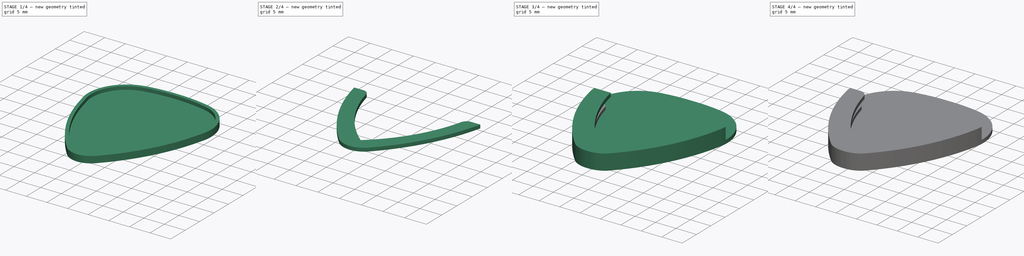
[diagram: build sequence overview — one tinted view per stage of 4, left to right]
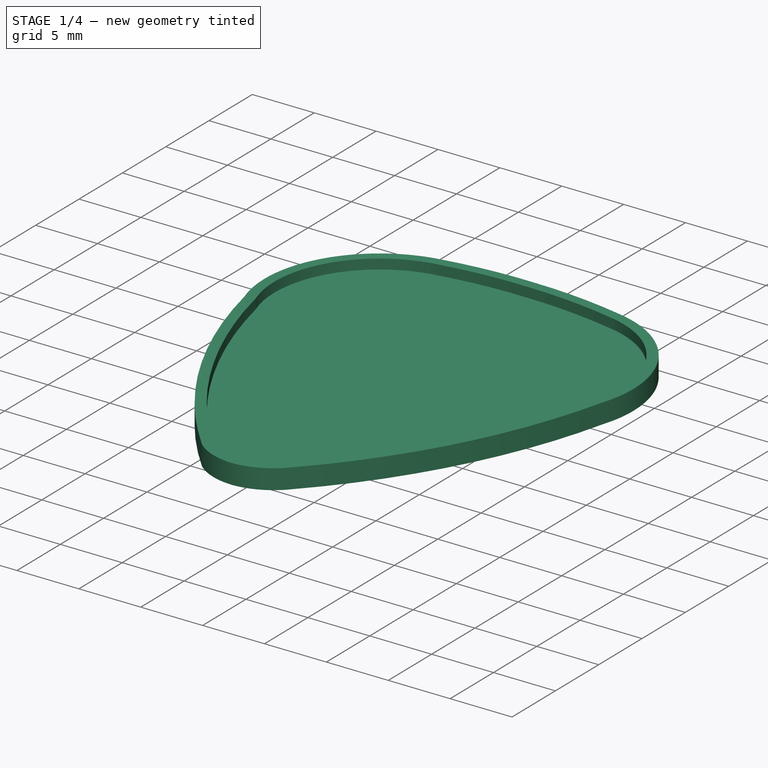
[diagram: stage 1 of 4 — iso view after this stage's code; geometry added in this stage tinted green]
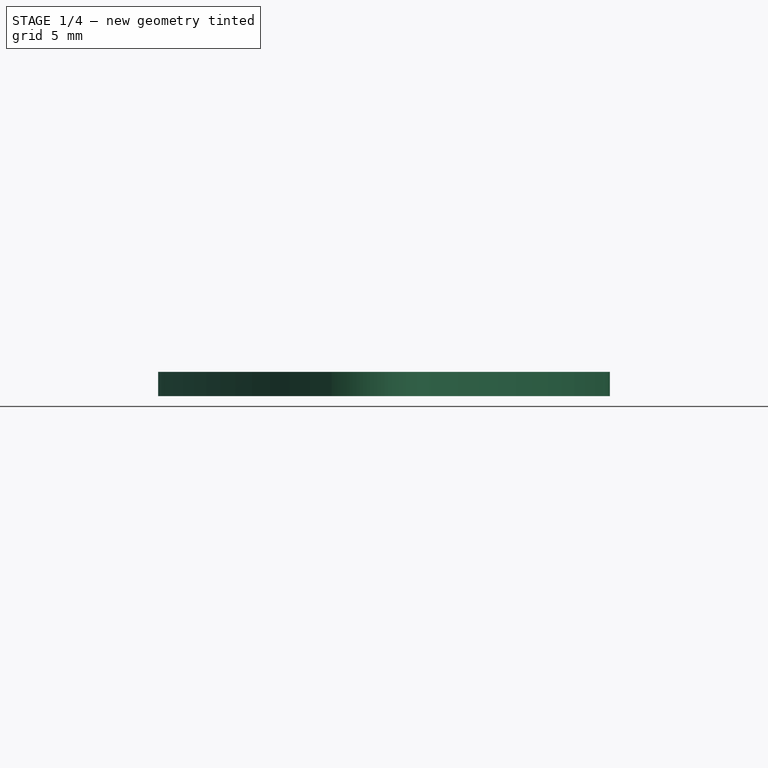
[diagram: stage 1 of 4 — front view after this stage's code; geometry added in this stage tinted green]
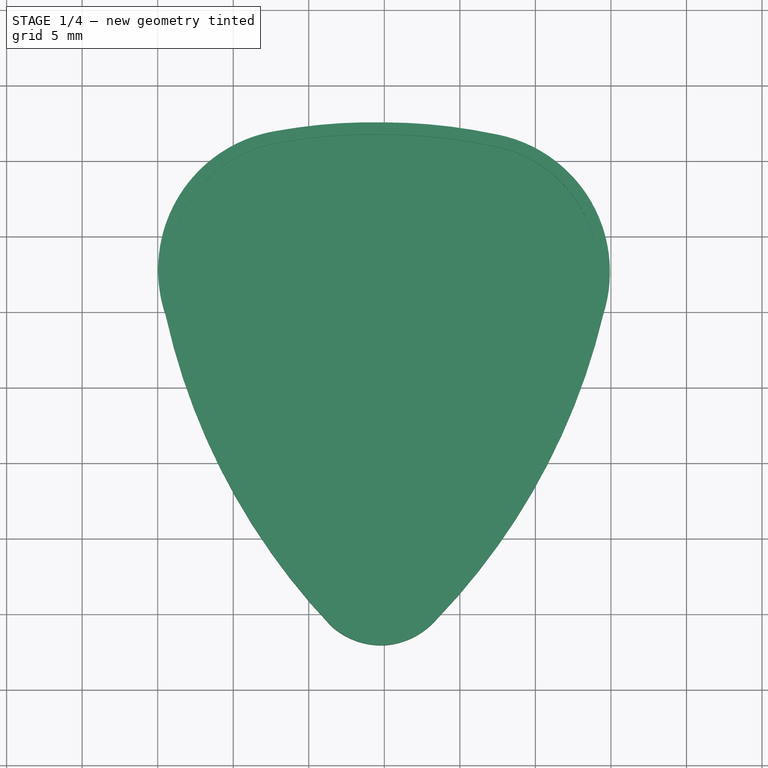
[diagram: stage 1 of 4 — top view after this stage's code; geometry added in this stage tinted green]
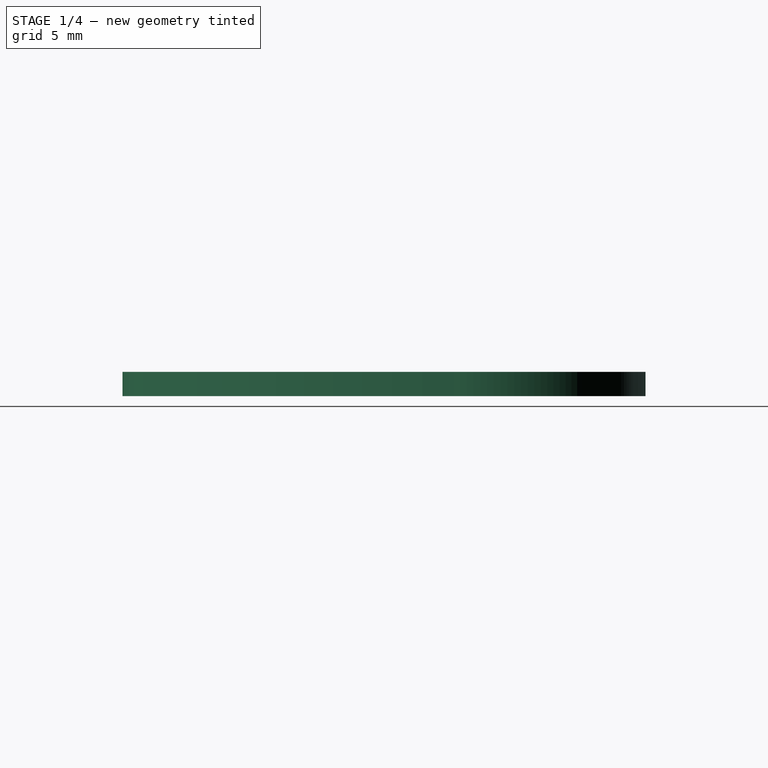
[diagram: stage 1 of 4 — right view after this stage's code; geometry added in this stage tinted green]
FCSTD DOCUMENT  (FreeCAD 0.18R16131 (Git))
Label: Guitar Plectrum Holder
License: CreativeCommons Attribution-NonCommercial-NoDerivatives
LicenseURL: http://creativecommons.org/licenses/by-nc-nd/4.0/
objects: Sketcher::SketchObject×7, PartDesign::Pad×5, PartDesign::Body×3, Spreadsheet::Sheet×2, PartDesign::Fillet×2, App::DocumentObjectGroup×2, Image::ImagePlane×1, PartDesign::Chamfer×1, PartDesign::Thickness×1, PartDesign::Pocket×1, PartDesign::ShapeBinder×1
note: 27 computed .brp shape members not serialized (recipe doc carries the construction recipe); baked Part::Feature solids carry a one-line shape summary decoded from their .brp

FEATURE [PartDesign::Body] Body
  Group = -> [Sketch,Pad,Sketch001,Pad001,Sketch002,Pad002,Chamfer,Fillet]
  Origin = -> Origin
  Tip = -> Fillet
FEATURE [Spreadsheet::Sheet] Spreadsheet001  label="TopSpreadsheet"
  cells = A1=ShellOffset; B1(ShellOffset)=2; A2=ShellThickness; B2(ShellThickness)=1.6; A3=ShellHeight; B3(ShellHeight)=2; A4=OverhangWidth; B4(OverhangWidth)=4; A5=OverhangChamfer; B5(OverhangChamfer)=1.5
FEATURE [Sketcher::SketchObject] Sketch003
  MapMode = 5
  Support = -> [XY_Plane001]
  expr: Constraints[27] = TopSpreadsheet.ShellOffset
  expr: Constraints[9] = TopSpreadsheet.ShellOffset
  expr: Constraints[38] = TopSpreadsheet.ShellOffset
  expr: Constraints[26] = TopSpreadsheet.ShellOffset
  expr: Constraints[44] = TopSpreadsheet.ShellOffset
  expr: Constraints[16] = TopSpreadsheet.ShellOffset
  expr: Constraints[11] = TopSpreadsheet.ShellOffset
  expr: Constraints[39] = TopSpreadsheet.ShellOffset
  sketch-geometry (24):
    g0: ArcOfCircle [constr] CenterX=-5.50026 CenterY=7.59706 CenterZ=0 NormalX=0 NormalY=0 NormalZ=1 AngleXU=0 Radius=7.55281 StartAngle=1.70906 EndAngle=3.35591
    g1: ArcOfCircle [constr] CenterX=26.1213 CenterY=13.5975 CenterZ=0 NormalX=0 NormalY=0 NormalZ=1 AngleXU=0 Radius=39.7365 StartAngle=3.33421 EndAngle=3.92692
    g2: ArcOfCircle [constr] CenterX=-0.255865 CenterY=-12.1995 CenterZ=0 NormalX=0 NormalY=0 NormalZ=1 AngleXU=0 Radius=2.87283 StartAngle=4.06936 EndAngle=4.80157
    g3: ArcOfCircle [constr] CenterX=-0.819797 CenterY=-18.5992 CenterZ=0 NormalX=0 NormalY=0 NormalZ=1 AngleXU=0 Radius=34.1595 StartAngle=1.54679 EndAngle=1.73908
    g4: ArcOfCircle [constr] CenterX=0.11781 CenterY=-18.5659 CenterZ=0 NormalX=0 NormalY=0 NormalZ=1 AngleXU=0 Radius=34.1166 StartAngle=1.38371 EndAngle=1.57425
    g5: ArcOfCircle [constr] CenterX=5.50894 CenterY=7.47827 CenterZ=0 NormalX=0 NormalY=0 NormalZ=1 AngleXU=0 Radius=7.53778 StartAngle=6.09701 EndAngle=7.727
    g6: ArcOfCircle [constr] CenterX=-26.1042 CenterY=13.5899 CenterZ=0 NormalX=0 NormalY=0 NormalZ=1 AngleXU=0 Radius=39.7361 StartAngle=5.50152 EndAngle=6.09313
    g7: ArcOfCircle [constr] CenterX=0.257735 CenterY=-12.2001 CenterZ=0 NormalX=0 NormalY=0 NormalZ=1 AngleXU=0 Radius=2.87036 StartAngle=4.62249 EndAngle=5.40851
    g8: LineSegment [constr] StartX=2.6e-15 StartY=15.5505 StartZ=0 EndX=2.6e-15 EndY=17.5505 EndZ=0
    g9: LineSegment [constr] StartX=-6.54119 StartY=15.0778 StartZ=0 EndX=-7.13932 EndY=16.9863 EndZ=0
    g10: LineSegment [constr] StartX=-12.8803 StartY=5.99074 StartZ=0 EndX=-14.4647 EndY=4.77018 EndZ=0
    g11: LineSegment [constr] StartX=-1.97848 StartY=-14.4986 StartZ=0 EndX=-3.48032 EndY=-15.8194 EndZ=0
    g12: LineSegment [constr] StartX=3e-16 StartY=-15.0609 StartZ=0 EndX=2.374e-12 EndY=-17.0609 EndZ=0
    g13: ArcOfCircle CenterX=-0.776429 CenterY=-18.0741 CenterZ=0 NormalX=0 NormalY=0 NormalZ=1 AngleXU=0 Radius=35.6331 StartAngle=1.54901 EndAngle=1.75033
    g14: ArcOfCircle CenterX=-5.67028 CenterY=7.80101 CenterZ=0 NormalX=0 NormalY=0 NormalZ=1 AngleXU=0 Radius=9.30199 StartAngle=1.72939 EndAngle=3.47348
    g15: ArcOfCircle CenterX=28.1406 CenterY=14.2749 CenterZ=0 NormalX=0 NormalY=0 NormalZ=1 AngleXU=0 Radius=43.6526 StartAngle=3.36109 EndAngle=3.90226
    g16: ArcOfCircle CenterX=-0.181533 CenterY=-12.071 CenterZ=0 NormalX=0 NormalY=0 NormalZ=1 AngleXU=0 Radius=4.99323 StartAngle=3.9907 EndAngle=4.74875
    g17: ArcOfCircle CenterX=-0.0750117 CenterY=-18.0812 CenterZ=0 NormalX=0 NormalY=0 NormalZ=1 AngleXU=0 Radius=35.6318 StartAngle=1.36314 EndAngle=1.56869
    g18: ArcOfCircle CenterX=5.67604 CenterY=7.67005 CenterZ=0 NormalX=0 NormalY=0 NormalZ=1 AngleXU=0 Radius=9.25357 StartAngle=5.97309 EndAngle=7.68076
    g19: LineSegment [constr] StartX=6.4635 StartY=14.9554 StartZ=0 EndX=7.27094 EndY=16.7851 EndZ=0
    g20: LineSegment [constr] StartX=12.9165 StartY=6.08304 StartZ=0 EndX=14.4883 EndY=4.84633 EndZ=0
    g21: ArcOfCircle CenterX=-28.142 CenterY=15.031 CenterZ=0 NormalX=0 NormalY=0 NormalZ=1 AngleXU=0 Radius=43.83 StartAngle=5.51808 EndAngle=6.04867
    g22: ArcOfCircle CenterX=-0.339672 CenterY=-12.0369 CenterZ=0 NormalX=0 NormalY=0 NormalZ=1 AngleXU=0 Radius=5.03549 StartAngle=4.7799 EndAngle=5.57138
    g23: LineSegment [constr] StartX=1.99046 StartY=-13.9838 StartZ=0 EndX=3.47312 EndY=-15.3261 EndZ=0
  constraints (49):
    c: Coincident(g1,g0)
    c: Coincident(g2,g1)
    c: PointOnObject(g2,g-2)
    c: Coincident(g3,g0)
    c: Coincident(g6,g5)
    c: Coincident(g7,g6)
    c: Coincident(g4,g5)
    c: Coincident(g8,g3)
    c: Vertical(g8)
    c: Distance(g8) = 2
    c: Coincident(g9,g0)
    c: Distance(g9) = 2
    c: Coincident(g10,g0)
    c: Coincident(g11,g1)
    c: Coincident(g12,g2)
    c: PointOnObject(g12,g-2)
    c: Distance(g10) = 2
    c: Block(g2)
    c: Block(g1)
    c: Block(g0)
    c: Coincident(g4,g3)
    c: Block(g6)
    c: Block(g5)
    c: Block(g4)
    c: Block(g3)
    c: Block(g7)
    c: Distance(g11) = 2
    c: Distance(g12) = 2
    c: Coincident(g13,g8)
    c: Coincident(g13,g9)
    c: Coincident(g14,g13)
    c: Coincident(g14,g10)
    c: Coincident(g15,g14)
    c: Coincident(g15,g11)
    c: Coincident(g16,g15)
    c: Coincident(g16,g12)
    c: Coincident(g18,g17)
    c: Coincident(g13,g17)
    c: Distance(g19) = 2
    c: Distance(g20) = 2
    c: Coincident(g20,g5)
    c: Coincident(g20,g18)
    c: Coincident(g22,g21)
    c: Coincident(g18,g21)
    c: Distance(g23) = 2
    c: Coincident(g16,g22)
    c: Coincident(g23,g21)
    c: Coincident(g4,g19)
    c: Coincident(g19,g17)
FEATURE [PartDesign::Pad] Pad005
  Length = 1.6
  Length2 = 100
  Profile = -> Sketch003
  Type = 0
  expr: Length = Spreadsheet001.ShellThickness
FEATURE [Sketcher::SketchObject] Sketch004
  ExternalGeometry = -> [Pad005]
  MapMode = 5
  Placement = pos=(0,0,1.6) rot=(0,0,1;0rad)
  Support = -> [Pad005]
  sketch-geometry (8):
    g0: ArcOfCircle CenterX=-0.776429 CenterY=-18.0741 CenterZ=0 NormalX=0 NormalY=0 NormalZ=1 AngleXU=0 Radius=35.6331 StartAngle=1.54901 EndAngle=1.75033
    g1: ArcOfCircle CenterX=-5.67028 CenterY=7.80101 CenterZ=0 NormalX=0 NormalY=0 NormalZ=1 AngleXU=0 Radius=9.30199 StartAngle=1.72939 EndAngle=3.47348
    g2: ArcOfCircle CenterX=28.1406 CenterY=14.2749 CenterZ=0 NormalX=0 NormalY=0 NormalZ=1 AngleXU=0 Radius=43.6526 StartAngle=3.36109 EndAngle=3.90226
    g3: ArcOfCircle CenterX=-0.181533 CenterY=-12.071 CenterZ=0 NormalX=0 NormalY=0 NormalZ=1 AngleXU=0 Radius=4.99323 StartAngle=3.9907 EndAngle=4.74875
    g4: ArcOfCircle CenterX=-0.339672 CenterY=-12.0369 CenterZ=0 NormalX=0 NormalY=0 NormalZ=1 AngleXU=0 Radius=5.03549 StartAngle=4.7799 EndAngle=5.57138
    g5: ArcOfCircle CenterX=-28.142 CenterY=15.031 CenterZ=0 NormalX=0 NormalY=0 NormalZ=1 AngleXU=0 Radius=43.83 StartAngle=5.51808 EndAngle=6.04867
    g6: ArcOfCircle CenterX=5.67604 CenterY=7.67005 CenterZ=0 NormalX=0 NormalY=0 NormalZ=1 AngleXU=0 Radius=9.25357 StartAngle=5.97309 EndAngle=7.68076
    g7: ArcOfCircle CenterX=-0.0750117 CenterY=-18.0812 CenterZ=0 NormalX=0 NormalY=0 NormalZ=1 AngleXU=0 Radius=35.6318 StartAngle=1.36314 EndAngle=1.56869
  constraints (24):
    c: Coincident(g0,g-10)
    c: Coincident(g0,g-10)
    c: Coincident(g1,g0)
    c: Coincident(g1,g-9)
    c: Coincident(g2,g1)
    c: Coincident(g2,g-8)
    c: Coincident(g3,g2)
    c: Coincident(g3,g-7)
    c: Coincident(g4,g3)
    c: Coincident(g4,g-6)
    c: Coincident(g5,g4)
    c: Coincident(g5,g-5)
    c: Coincident(g6,g5)
    c: Coincident(g6,g-4)
    c: Coincident(g7,g0)
    c: Coincident(g7,g6)
    c: Equal(g-10,g0)
    c: Equal(g-9,g1)
    c: Equal(g-8,g2)
    c: Equal(g-7,g3)
    c: Equal(g-6,g4)
    c: Equal(g-5,g5)
    c: Equal(g-4,g6)
    c: Equal(g-3,g7)
FEATURE [PartDesign::Thickness] Thickness
  Base = -> Pad005 [Face10]
  BaseFeature = -> Pad005
  Join = 1
  Mode = 0
  Reversed = true
  Value = 0.8
  expr: Value = Spreadsheet001.ShellThickness / 2
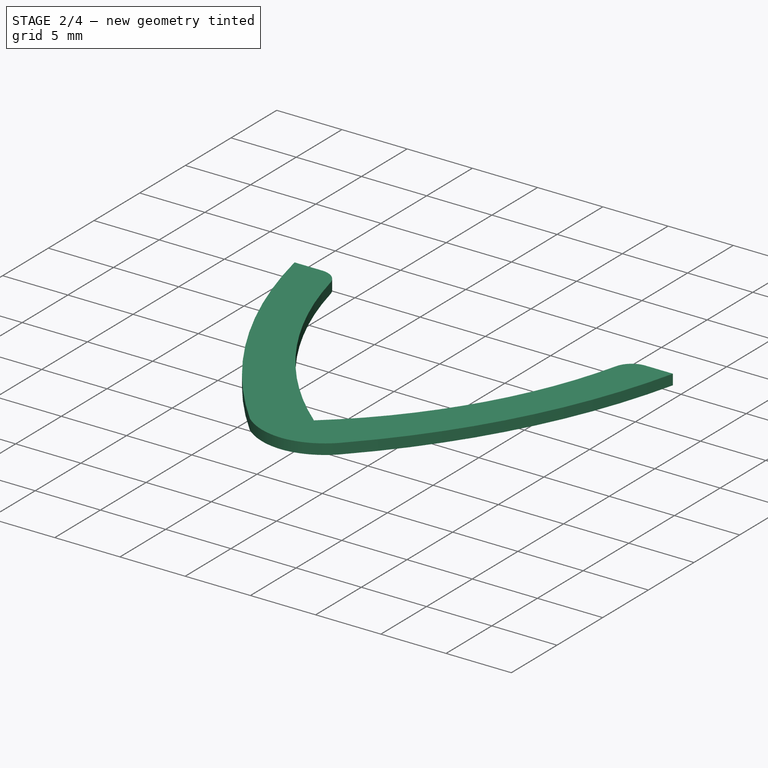
[diagram: stage 2 of 4 — iso view after this stage's code; geometry added in this stage tinted green]
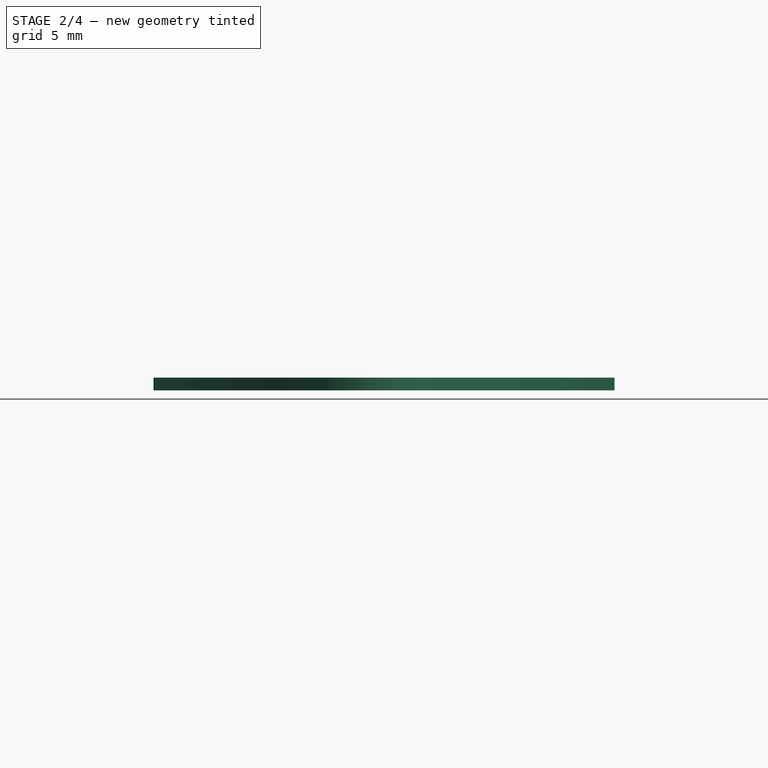
[diagram: stage 2 of 4 — front view after this stage's code; geometry added in this stage tinted green]
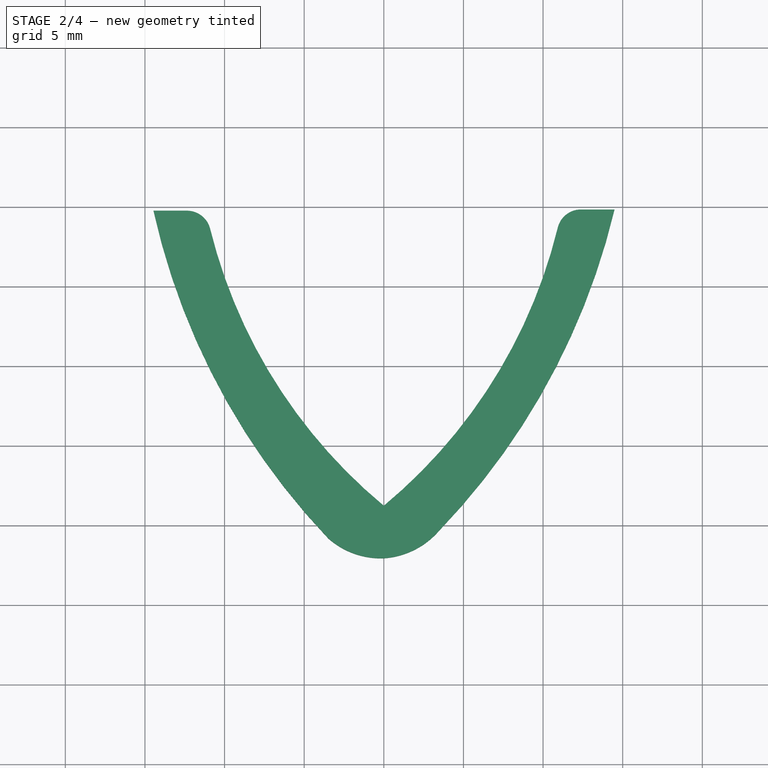
[diagram: stage 2 of 4 — top view after this stage's code; geometry added in this stage tinted green]
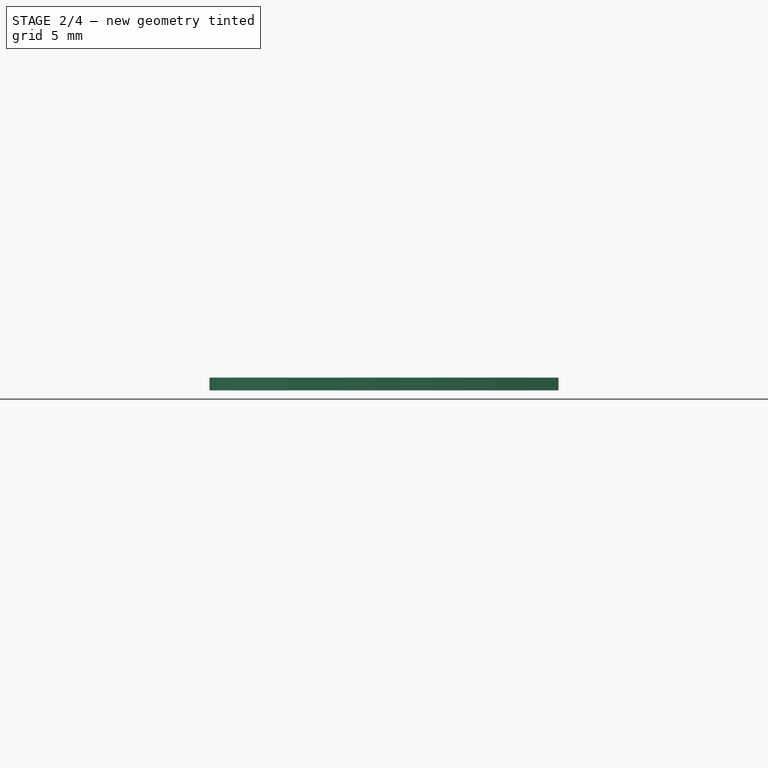
[diagram: stage 2 of 4 — right view after this stage's code; geometry added in this stage tinted green]
FEATURE [Sketcher::SketchObject] Sketch005
  ExternalGeometry = -> [Thickness]
  MapMode = 5
  Placement = pos=(0,0,1.6) rot=(0,0,1;0rad)
  Support = -> [Thickness]
  sketch-geometry (10):
    g0: LineSegment StartX=-14.4647 StartY=4.77018 StartZ=0 EndX=-13.6938 EndY=4.98909 EndZ=0
    g1: LineSegment StartX=13.7173 StartY=5.06217 StartZ=0 EndX=14.4883 EndY=4.84633 EndZ=0
    g2: ArcOfCircle CenterX=-5.67028 CenterY=7.80101 CenterZ=0 NormalX=0 NormalY=0 NormalZ=1 AngleXU=0 Radius=8.50199 StartAngle=1.72842 EndAngle=3.47868
    g3: ArcOfCircle CenterX=5.67604 CenterY=7.67005 CenterZ=0 NormalX=0 NormalY=0 NormalZ=1 AngleXU=0 Radius=8.45357 StartAngle=5.96958 EndAngle=7.68236
    g4: ArcOfCircle CenterX=5.67604 CenterY=7.67005 CenterZ=0 NormalX=0 NormalY=0 NormalZ=1 AngleXU=0 Radius=9.25357 StartAngle=5.97309 EndAngle=7.68076
    g5: ArcOfCircle CenterX=-0.0750117 CenterY=-18.0812 CenterZ=0 NormalX=0 NormalY=0 NormalZ=1 AngleXU=0 Radius=35.6318 StartAngle=1.36314 EndAngle=1.56869
    g6: ArcOfCircle CenterX=-0.776429 CenterY=-18.0741 CenterZ=0 NormalX=0 NormalY=0 NormalZ=1 AngleXU=0 Radius=35.6331 StartAngle=1.54901 EndAngle=1.75033
    g7: ArcOfCircle CenterX=-5.67028 CenterY=7.80101 CenterZ=0 NormalX=0 NormalY=0 NormalZ=1 AngleXU=0 Radius=9.30199 StartAngle=1.72939 EndAngle=3.47348
    g8: ArcOfCircle CenterX=-0.0750117 CenterY=-18.0812 CenterZ=0 NormalX=0 NormalY=0 NormalZ=1 AngleXU=0 Radius=34.8318 StartAngle=1.36274 EndAngle=1.56892
    g9: ArcOfCircle CenterX=-0.776429 CenterY=-18.0741 CenterZ=0 NormalX=0 NormalY=0 NormalZ=1 AngleXU=0 Radius=34.8331 StartAngle=1.54878 EndAngle=1.75057
  constraints (28):
    c: Coincident(g-9,g0)
    c: Coincident(g-10,g0)
    c: Coincident(g-6,g1)
    c: Coincident(g-4,g1)
    c: Coincident(g0,g2)
    c: Coincident(g2,g-10)
    c: Equal(g-10,g2)
    c: Coincident(g3,g1)
    c: Coincident(g4,g1)
    c: Coincident(g4,g-4)
    c: Coincident(g5,g4)
    c: Coincident(g5,g-7)
    c: Coincident(g6,g-9)
    c: Coincident(g6,g5)
    c: Coincident(g7,g6)
    c: Coincident(g7,g0)
    c: Equal(g-9,g7)
    c: Equal(g-7,g6)
    c: Equal(g-3,g5)
    c: Equal(g-4,g4)
    c: Equal(g-6,g3)
    c: Coincident(g8,g-8)
    c: Coincident(g8,g3)
    c: Coincident(g9,g8)
    c: Coincident(g9,g2)
    c: Equal(g-8,g9)
    c: Equal(g-5,g8)
    c: Coincident(g-6,g3)
FEATURE [PartDesign::Pocket] Pocket
  BaseFeature = -> Thickness
  Length = 0.8
  Length2 = 100
  Profile = -> Sketch005
  Type = 0
  expr: Length = TopSpreadsheet.ShellThickness / 2
FEATURE [PartDesign::Body] Body001  label="MainBody"
  Group = -> [Sketch003,Pad005,Sketch004,Thickness,Sketch005,Pocket]
  Origin = -> Origin001
  Tip = -> Pocket
FEATURE [PartDesign::ShapeBinder] ShapeBinder
  Support = -> [Pocket]
  TraceSupport = false
FEATURE [Sketcher::SketchObject] Sketch006
  ExternalGeometry = -> [ShapeBinder]
  MapMode = 5
  Placement = pos=(0,0,1.6) rot=(0,0,1;0rad)
  Support = -> [ShapeBinder]
  sketch-geometry (10):
    g0: ArcOfCircle CenterX=28.1406 CenterY=14.2749 CenterZ=0 NormalX=0 NormalY=0 NormalZ=1 AngleXU=0 Radius=43.6526 StartAngle=3.36109 EndAngle=3.90226
    g1: ArcOfCircle CenterX=-0.181533 CenterY=-12.071 CenterZ=0 NormalX=0 NormalY=0 NormalZ=1 AngleXU=0 Radius=4.99323 StartAngle=3.9907 EndAngle=4.74875
    g2: ArcOfCircle CenterX=-0.339672 CenterY=-12.0369 CenterZ=0 NormalX=0 NormalY=0 NormalZ=1 AngleXU=0 Radius=5.03549 StartAngle=4.7799 EndAngle=5.57138
    g3: ArcOfCircle CenterX=-28.142 CenterY=15.031 CenterZ=0 NormalX=0 NormalY=0 NormalZ=1 AngleXU=0 Radius=43.83 StartAngle=5.51808 EndAngle=6.04867
    g4: LineSegment StartX=-14.4647 StartY=4.77018 StartZ=0 EndX=-11.1647 EndY=4.77018 EndZ=0
    g5: LineSegment StartX=14.4883 StartY=4.84633 StartZ=0 EndX=11.1883 EndY=4.84633 EndZ=0
    g6: GeomPoint X=2.2702e-12 Y=-13.7609 Z=0
    g7: ArcOfCircle CenterX=20.9812 CenterY=11.5087 CenterZ=0 NormalX=0 NormalY=0 NormalZ=1 AngleXU=0 Radius=32.8445 StartAngle=3.34822 EndAngle=4.01945
    g8: ArcOfCircle CenterX=-20.9812 CenterY=11.5087 CenterZ=0 NormalX=0 NormalY=0 NormalZ=1 AngleXU=0 Radius=32.8445 StartAngle=5.40533 EndAngle=6.07655
    g9: LineSegment StartX=11.1647 StartY=4.77018 StartZ=0 EndX=11.1883 EndY=4.84633 EndZ=0
  constraints (18):
    c: Coincident(g0,g-3)
    c: Coincident(g0,g-4)
    c: Coincident(g1,g0)
    c: Coincident(g1,g-5)
    c: Coincident(g2,g1)
    c: Coincident(g2,g-6)
    c: Coincident(g3,g2)
    c: Equal(g-3,g0)
    c: Equal(g-4,g1)
    c: Equal(g-5,g2)
    c: Equal(g-6,g3)
    c: Coincident(g4,g0)
    c: Coincident(g7,g4)
    c: Coincident(g7,g6)
    c: Block(g7)
    c: Block(g8)
    c: Coincident(g9,g8)
    c: Coincident(g9,g5)
FEATURE [PartDesign::Pad] Pad006
  Length = 0.8
  Length2 = 100
  Profile = -> Sketch006
  Type = 0
  expr: Length = TopSpreadsheet.ShellThickness / 2
FEATURE [App::DocumentObjectGroup] Group  label="Main"
  Group = -> [Body001,Spreadsheet]
FEATURE [PartDesign::Fillet] Fillet001
  Base = -> Pad006 [Edge23,Edge14]
  BaseFeature = -> Pad006
  Radius = 1.5
FEATURE [PartDesign::Body] Body002  label="TopBody"
  Group = -> [ShapeBinder,Sketch006,Pad006,Fillet001]
  Origin = -> Origin002
  Tip = -> Fillet001
FEATURE [App::DocumentObjectGroup] Group001  label="Top"
  Group = -> [Body002,Spreadsheet001]
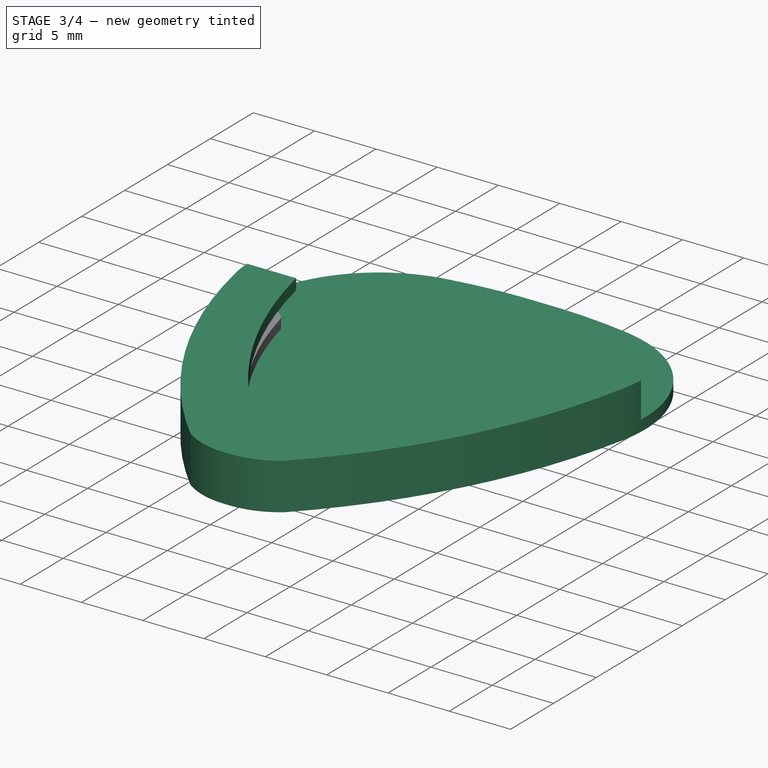
[diagram: stage 3 of 4 — iso view after this stage's code; geometry added in this stage tinted green]
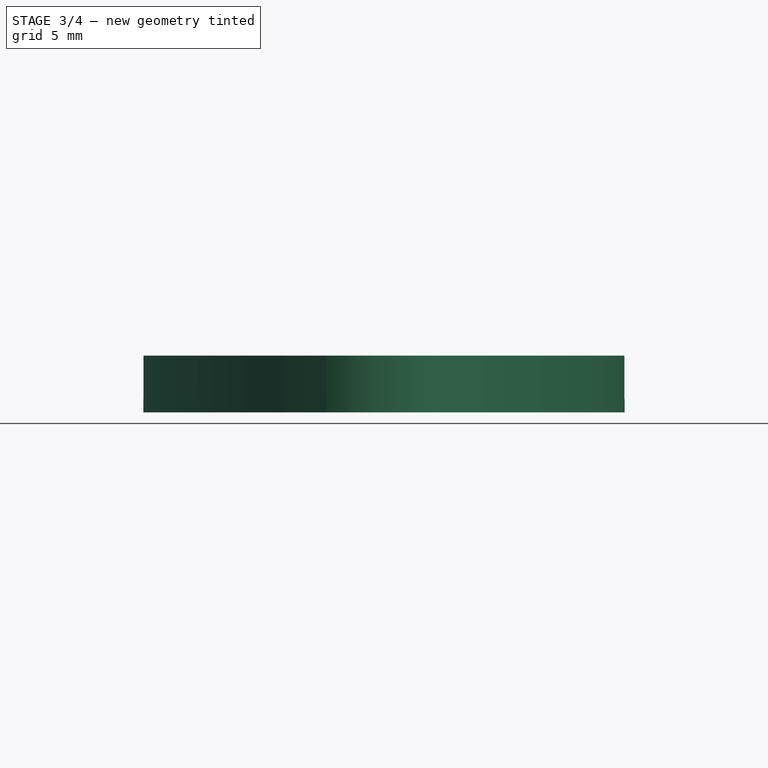
[diagram: stage 3 of 4 — front view after this stage's code; geometry added in this stage tinted green]
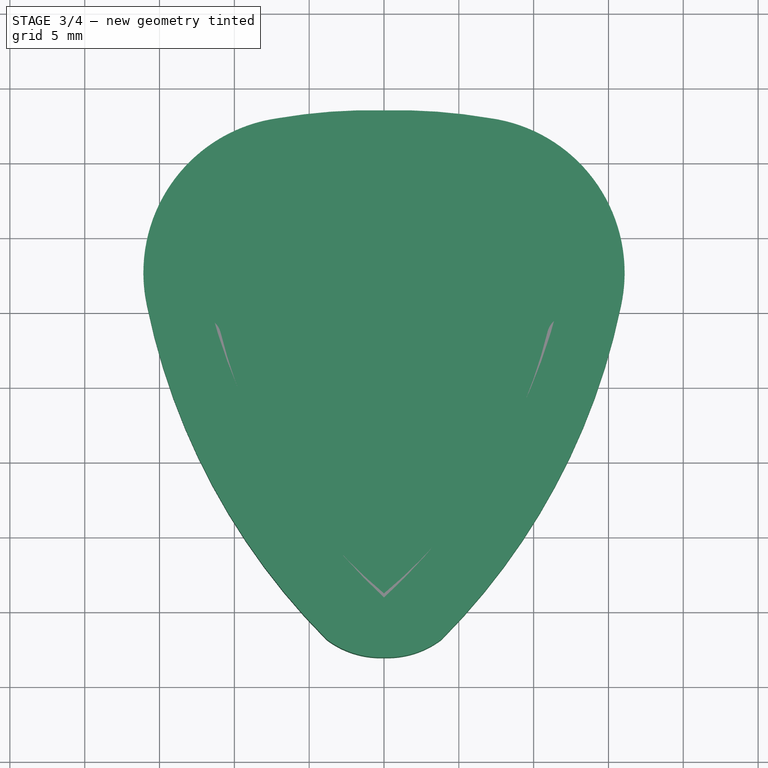
[diagram: stage 3 of 4 — top view after this stage's code; geometry added in this stage tinted green]
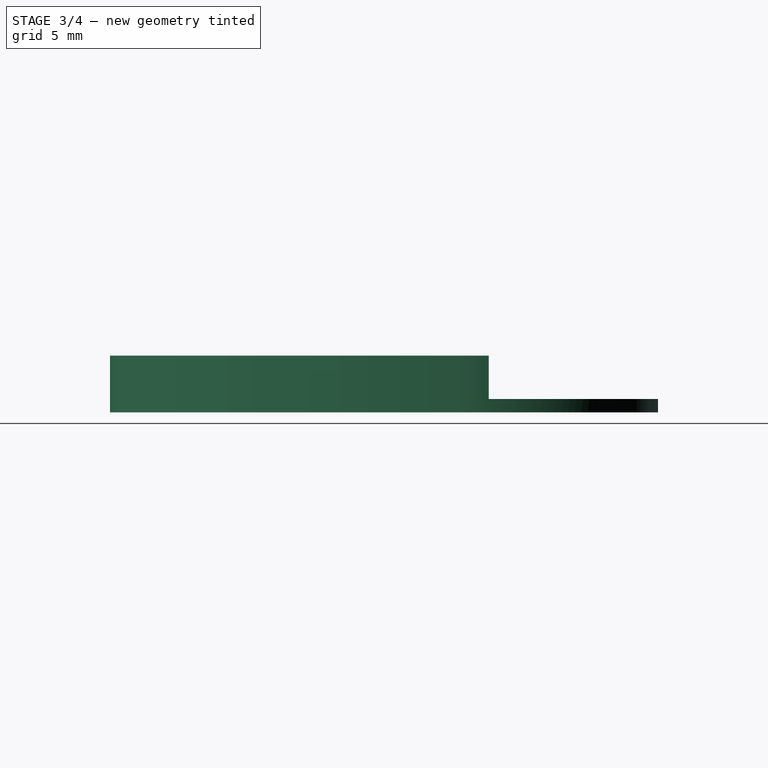
[diagram: stage 3 of 4 — right view after this stage's code; geometry added in this stage tinted green]
FEATURE [Sketcher::SketchObject] Sketch
  MapMode = 5
  Support = -> [XY_Plane]
  expr: Constraints[26] = Spreadsheet.ShellOffset
  expr: Constraints[16] = Spreadsheet.ShellOffset
  expr: Constraints[11] = Spreadsheet.ShellOffset
  expr: Constraints[27] = Spreadsheet.ShellOffset
  expr: Constraints[9] = Spreadsheet.ShellOffset
  sketch-geometry (21):
    g0: ArcOfCircle [constr] CenterX=-5.50026 CenterY=7.59706 CenterZ=0 NormalX=0 NormalY=0 NormalZ=1 AngleXU=0 Radius=7.55281 StartAngle=1.70906 EndAngle=3.35591
    g1: ArcOfCircle [constr] CenterX=26.1213 CenterY=13.5975 CenterZ=0 NormalX=0 NormalY=0 NormalZ=1 AngleXU=0 Radius=39.7365 StartAngle=3.33421 EndAngle=3.92692
    g2: ArcOfCircle [constr] CenterX=-0.255865 CenterY=-12.1995 CenterZ=0 NormalX=0 NormalY=0 NormalZ=1 AngleXU=0 Radius=2.87283 StartAngle=4.06936 EndAngle=4.80157
    g3: ArcOfCircle [constr] CenterX=-0.819797 CenterY=-18.5992 CenterZ=0 NormalX=0 NormalY=0 NormalZ=1 AngleXU=0 Radius=34.1595 StartAngle=1.54679 EndAngle=1.73908
    g4: ArcOfCircle [constr] CenterX=0.11781 CenterY=-18.5659 CenterZ=0 NormalX=0 NormalY=0 NormalZ=1 AngleXU=0 Radius=34.1166 StartAngle=1.38371 EndAngle=1.57425
    g5: ArcOfCircle [constr] CenterX=5.50894 CenterY=7.47827 CenterZ=0 NormalX=0 NormalY=0 NormalZ=1 AngleXU=0 Radius=7.53778 StartAngle=6.09701 EndAngle=7.727
    g6: ArcOfCircle [constr] CenterX=-26.1042 CenterY=13.5899 CenterZ=0 NormalX=0 NormalY=0 NormalZ=1 AngleXU=0 Radius=39.7361 StartAngle=5.50152 EndAngle=6.09313
    g7: ArcOfCircle [constr] CenterX=0.257735 CenterY=-12.2001 CenterZ=0 NormalX=0 NormalY=0 NormalZ=1 AngleXU=0 Radius=2.87036 StartAngle=4.62249 EndAngle=5.40851
    g8: LineSegment [constr] StartX=-3.1e-15 StartY=15.5505 StartZ=0 EndX=-3.1e-15 EndY=18.5505 EndZ=0
    g9: LineSegment [constr] StartX=-6.54119 StartY=15.0778 StartZ=0 EndX=-7.10167 EndY=18.025 EndZ=0
    g10: LineSegment [constr] StartX=-12.8803 StartY=5.99074 StartZ=0 EndX=-15.8317 EndY=5.45318 EndZ=0
    g11: LineSegment [constr] StartX=-1.97848 StartY=-14.4986 StartZ=0 EndX=-3.83834 EndY=-16.8525 EndZ=0
    g12: LineSegment [constr] StartX=2e-16 StartY=-15.0609 StartZ=0 EndX=-3.844e-13 EndY=-18.0609 EndZ=0
    g13: ArcOfCircle CenterX=-0.860453 CenterY=-18.0683 CenterZ=0 NormalX=0 NormalY=0 NormalZ=1 AngleXU=0 Radius=36.6289 StartAngle=1.5473 EndAngle=1.74202
    g14: ArcOfCircle CenterX=-5.65634 CenterY=7.70428 CenterZ=0 NormalX=0 NormalY=0 NormalZ=1 AngleXU=0 Radius=10.4214 StartAngle=1.70993 EndAngle=3.35932
    g15: ArcOfCircle CenterX=27.5331 CenterY=14.3926 CenterZ=0 NormalX=0 NormalY=0 NormalZ=1 AngleXU=0 Radius=44.2767 StartAngle=3.34489 EndAngle=3.92497
    g16: ArcOfCircle CenterX=-0.226546 CenterY=-12.0804 CenterZ=0 NormalX=0 NormalY=0 NormalZ=1 AngleXU=0 Radius=5.98482 StartAngle=4.06451 EndAngle=4.75025
    g17: ArcOfCircle CenterX=0.860453 CenterY=-18.0683 CenterZ=0 NormalX=0 NormalY=0 NormalZ=1 AngleXU=0 Radius=36.6289 StartAngle=1.39957 EndAngle=1.59429
    g18: ArcOfCircle CenterX=5.65634 CenterY=7.70428 CenterZ=0 NormalX=0 NormalY=0 NormalZ=1 AngleXU=0 Radius=10.4214 StartAngle=6.06546 EndAngle=7.71485
    g19: ArcOfCircle CenterX=-27.5331 CenterY=14.3926 CenterZ=0 NormalX=0 NormalY=0 NormalZ=1 AngleXU=0 Radius=44.2767 StartAngle=5.49981 EndAngle=6.07989
    g20: ArcOfCircle CenterX=0.226546 CenterY=-12.0804 CenterZ=0 NormalX=0 NormalY=0 NormalZ=1 AngleXU=0 Radius=5.98482 StartAngle=4.67453 EndAngle=5.36026
  constraints (39):
    c: Coincident(g1,g0)
    c: Coincident(g2,g1)
    c: PointOnObject(g2,g-2)
    c: Coincident(g3,g0)
    c: Coincident(g6,g5)
    c: Coincident(g7,g6)
    c: Coincident(g4,g5)
    c: Coincident(g8,g3)
    c: Vertical(g8)
    c: Distance(g8) = 3
    c: Coincident(g9,g0)
    c: Distance(g9) = 3
    c: Coincident(g10,g0)
    c: Coincident(g11,g1)
    c: Coincident(g12,g2)
    c: PointOnObject(g12,g-2)
    c: Distance(g10) = 3
    c: Block(g2)
    c: Block(g1)
    c: Block(g0)
    c: Coincident(g4,g3)
    c: Block(g6)
    c: Block(g5)
    c: Block(g4)
    c: Block(g3)
    c: Block(g7)
    c: Distance(g11) = 3
    c: Distance(g12) = 3
    c: Coincident(g13,g8)
    c: Coincident(g13,g9)
    c: Coincident(g14,g13)
    c: Coincident(g14,g10)
    c: Coincident(g15,g14)
    c: Coincident(g15,g11)
    c: Coincident(g16,g15)
    c: Coincident(g16,g12)
    c: Coincident(g18,g17)
    c: Coincident(g19,g18)
    c: Coincident(g20,g19)
FEATURE [Image::ImagePlane] ImagePlane
  XSize = 29
  YSize = 33
FEATURE [Spreadsheet::Sheet] Spreadsheet  label="MainSpreadsheet"
  cells = A1=ShellOffset; B1(ShellOffset)==3mm; A2=ShellThickness; B2(ShellThickness)==0.9mm; A3=ShellHeight; B3(ShellHeight)=2; A4=OverhangWidth; B4(OverhangWidth)=4; A5=OverhangChamfer; B5(OverhangChamfer)=1.5
FEATURE [PartDesign::Pad] Pad
  Length = 0.9
  Length2 = 100
  Profile = -> Sketch
  Type = 0
  expr: Length = Spreadsheet.ShellThickness
FEATURE [Sketcher::SketchObject] Sketch001
  ExternalGeometry = -> [Pad]
  MapMode = 5
  Placement = pos=(0,0,0.9) rot=(0,0,1;0rad)
  Support = -> [Pad]
  expr: Constraints[28] = Spreadsheet.ShellThickness
  expr: Constraints[26] = Spreadsheet.ShellThickness
  expr: Constraints[27] = Spreadsheet.ShellThickness
  sketch-geometry (17):
    g0: ArcOfCircle CenterX=-5.65634 CenterY=7.70428 CenterZ=0 NormalX=0 NormalY=0 NormalZ=1 AngleXU=0 Radius=10.4214 StartAngle=3.18623 EndAngle=3.35932
    g1: ArcOfCircle CenterX=27.5331 CenterY=14.3926 CenterZ=0 NormalX=0 NormalY=0 NormalZ=1 AngleXU=0 Radius=44.2767 StartAngle=3.34489 EndAngle=3.92497
    g2: ArcOfCircle CenterX=-0.226546 CenterY=-12.0804 CenterZ=0 NormalX=0 NormalY=0 NormalZ=1 AngleXU=0 Radius=5.98482 StartAngle=4.06451 EndAngle=4.75025
    g3: ArcOfCircle CenterX=5.65634 CenterY=7.70428 CenterZ=0 NormalX=0 NormalY=0 NormalZ=1 AngleXU=0 Radius=10.4214 StartAngle=6.06546 EndAngle=6.23855
    g4: ArcOfCircle CenterX=-27.5331 CenterY=14.3926 CenterZ=0 NormalX=0 NormalY=0 NormalZ=1 AngleXU=0 Radius=44.2767 StartAngle=5.49981 EndAngle=6.07989
    g5: ArcOfCircle CenterX=0.226546 CenterY=-12.0804 CenterZ=0 NormalX=0 NormalY=0 NormalZ=1 AngleXU=0 Radius=5.98482 StartAngle=4.67453 EndAngle=5.36026
    g6: LineSegment [constr] StartX=-15.8317 StartY=5.45318 StartZ=0 EndX=-14.9503 EndY=5.63489 EndZ=0
    g7: LineSegment [constr] StartX=-3.83834 StartY=-16.8525 StartZ=0 EndX=-3.2952 EndY=-16.1349 EndZ=0
    g8: LineSegment [constr] StartX=3.813e-13 StartY=-18.0609 StartZ=0 EndX=1.2e-15 EndY=-17.1609 EndZ=0
    g9: ArcOfCircle CenterX=-5.82683 CenterY=7.8232 CenterZ=0 NormalX=0 NormalY=0 NormalZ=1 AngleXU=0 Radius=9.3822 StartAngle=3.20387 EndAngle=3.377
    g10: ArcOfCircle CenterX=30.2288 CenterY=15.818 CenterZ=0 NormalX=0 NormalY=0 NormalZ=1 AngleXU=0 Radius=46.3124 StartAngle=3.36328 EndAngle=3.903
    g11: ArcOfCircle CenterX=-0.26723 CenterY=-12.2148 CenterZ=0 NormalX=0 NormalY=0 NormalZ=1 AngleXU=0 Radius=4.95333 StartAngle=4.05469 EndAngle=4.76636
    g12: ArcOfCircle CenterX=5.82683 CenterY=7.8232 CenterZ=0 NormalX=0 NormalY=0 NormalZ=1 AngleXU=0 Radius=9.3822 StartAngle=6.04778 EndAngle=6.2209
    g13: ArcOfCircle CenterX=-30.2288 CenterY=15.818 CenterZ=0 NormalX=0 NormalY=0 NormalZ=1 AngleXU=0 Radius=46.3124 StartAngle=5.52178 EndAngle=6.0615
    g14: ArcOfCircle CenterX=0.26723 CenterY=-12.2148 CenterZ=0 NormalX=0 NormalY=0 NormalZ=1 AngleXU=0 Radius=4.95333 StartAngle=4.65841 EndAngle=5.37009
    g15: LineSegment StartX=-16.0674 StartY=7.23925 StartZ=0 EndX=-15.1908 EndY=7.23925 EndZ=0
    g16: LineSegment StartX=16.0674 StartY=7.23925 StartZ=0 EndX=15.1908 EndY=7.23925 EndZ=0
  constraints (42):
    c: Coincident(g0,g-5)
    c: Coincident(g1,g0)
    c: Coincident(g1,g-6)
    c: Coincident(g2,g1)
    c: Coincident(g2,g-7)
    c: Equal(g0,g-4)
    c: Equal(g1,g-5)
    c: Equal(g2,g-6)
    c: Coincident(g3,g-9)
    c: Coincident(g4,g-8)
    c: Coincident(g5,g2)
    c: Equal(g-9,g3)
    c: Equal(g-8,g4)
    c: Equal(g-7,g5)
    c: Coincident(g6,g0)
    c: Coincident(g7,g1)
    c: Coincident(g8,g2)
    c: PointOnObject(g8,g-2)
    c: Perpendicular(g2,g7)
    c: Perpendicular(g1,g6)
    c: Block(g0)
    c: Block(g1)
    c: Block(g2)
    c: Block(g5)
    c: Block(g4)
    c: Block(g3)
    c: Distance(g6) = 0.9
    c: Distance(g7) = 0.9
    c: Distance(g8) = 0.9
    c: Coincident(g9,g6)
    c: Coincident(g10,g9)
    c: Coincident(g10,g7)
    c: Coincident(g11,g10)
    c: Coincident(g11,g8)
    c: Coincident(g13,g12)
    c: Coincident(g14,g13)
    c: Horizontal(g15)
    c: Coincident(g9,g15)
    c: Coincident(g0,g15)
    c: Horizontal(g16)
    c: PointOnObject(g12,g16)
    c: PointOnObject(g3,g16)
FEATURE [PartDesign::Pad] Pad001
  BaseFeature = -> Pad
  Length = 2
  Length2 = 100
  Profile = -> Sketch001
  Type = 0
  expr: Length = Spreadsheet.ShellHeight
FEATURE [Sketcher::SketchObject] Sketch002
  ExternalGeometry = -> [Pad001]
  MapMode = 5
  Placement = pos=(0,0,2.9) rot=(0,0,1;0rad)
  Support = -> [Pad001]
  expr: Constraints[27] = Spreadsheet.OverhangWidth
  expr: Constraints[23] = Spreadsheet.OverhangWidth
  expr: Constraints[20] = Spreadsheet.OverhangWidth
  sketch-geometry (11):
    g0: ArcOfCircle CenterX=-5.65634 CenterY=7.70428 CenterZ=0 NormalX=0 NormalY=0 NormalZ=1 AngleXU=0 Radius=10.4214 StartAngle=3.18623 EndAngle=3.35932
    g1: ArcOfCircle CenterX=27.5331 CenterY=14.3926 CenterZ=0 NormalX=0 NormalY=0 NormalZ=1 AngleXU=0 Radius=44.2767 StartAngle=3.34489 EndAngle=3.92497
    g2: ArcOfCircle CenterX=-0.226546 CenterY=-12.0804 CenterZ=0 NormalX=0 NormalY=0 NormalZ=1 AngleXU=0 Radius=5.98482 StartAngle=4.06451 EndAngle=4.75025
    g3: ArcOfCircle CenterX=5.65634 CenterY=7.70428 CenterZ=0 NormalX=0 NormalY=0 NormalZ=1 AngleXU=0 Radius=10.4214 StartAngle=6.06546 EndAngle=6.23855
    g4: ArcOfCircle CenterX=-27.5331 CenterY=14.3926 CenterZ=0 NormalX=0 NormalY=0 NormalZ=1 AngleXU=0 Radius=44.2767 StartAngle=5.49981 EndAngle=6.07989
    g5: ArcOfCircle CenterX=0.226546 CenterY=-12.0804 CenterZ=0 NormalX=0 NormalY=0 NormalZ=1 AngleXU=0 Radius=5.98482 StartAngle=4.67453 EndAngle=5.36026
    g6: LineSegment StartX=-16.0674 StartY=7.23925 StartZ=0 EndX=-12.0674 EndY=7.23925 EndZ=0
    g7: LineSegment [constr] StartX=4.015e-13 StartY=-18.0609 StartZ=0 EndX=4.015e-13 EndY=-14.0609 EndZ=0
    g8: ArcOfCircle CenterX=28.0822 CenterY=15.9171 CenterZ=0 NormalX=0 NormalY=0 NormalZ=1 AngleXU=0 Radius=41.0767 StartAngle=3.35446 EndAngle=3.95963
    g9: LineSegment StartX=16.0674 StartY=7.23925 StartZ=0 EndX=12.0674 EndY=7.23925 EndZ=0
    g10: ArcOfCircle CenterX=-27.1924 CenterY=15.413 CenterZ=0 NormalX=0 NormalY=0 NormalZ=1 AngleXU=0 Radius=40.1016 StartAngle=5.45755 EndAngle=6.07792
  constraints (31):
    c: Coincident(g0,g-10)
    c: Coincident(g0,g-4)
    c: Equal(g0,g-3)
    c: Coincident(g1,g0)
    c: Coincident(g1,g-5)
    c: Coincident(g2,g1)
    c: Coincident(g2,g-6)
    c: Equal(g1,g-4)
    c: Equal(g2,g-5)
    c: Coincident(g3,g-9)
    c: Coincident(g3,g-8)
    c: Equal(g3,g-8)
    c: Coincident(g4,g3)
    c: Coincident(g4,g-7)
    c: Coincident(g5,g4)
    c: Coincident(g5,g2)
    c: Equal(g4,g-7)
    c: Equal(g5,g-6)
    c: Coincident(g6,g0)
    c: Horizontal(g6)
    c: Distance(g6) = 4
    c: Coincident(g7,g2)
    c: Vertical(g7)
    c: Distance(g7) = 4
    c: Coincident(g8,g6)
    c: Coincident(g8,g7)
    c: Horizontal(g9)
    c: Distance(g9) = 4
    c: Coincident(g10,g9)
    c: Coincident(g3,g9)
    c: Coincident(g10,g8)
FEATURE [PartDesign::Pad] Pad002
  BaseFeature = -> Pad001
  Length = 0.9
  Length2 = 100
  Profile = -> Sketch002
  Type = 0
  expr: Length = Spreadsheet.ShellThickness
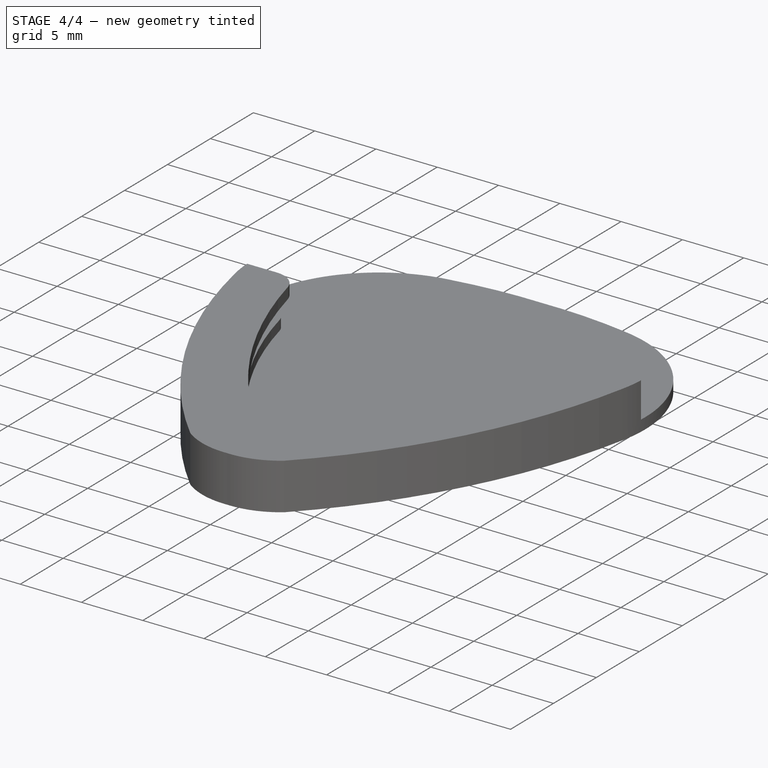
[diagram: stage 4 of 4 — iso view after this stage's code; geometry added in this stage tinted green]
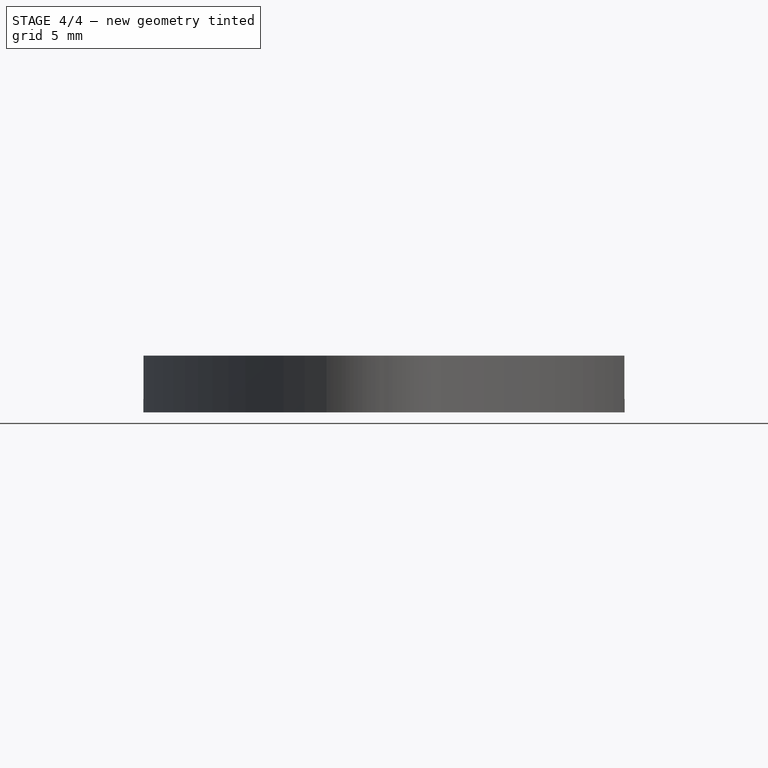
[diagram: stage 4 of 4 — front view after this stage's code; geometry added in this stage tinted green]
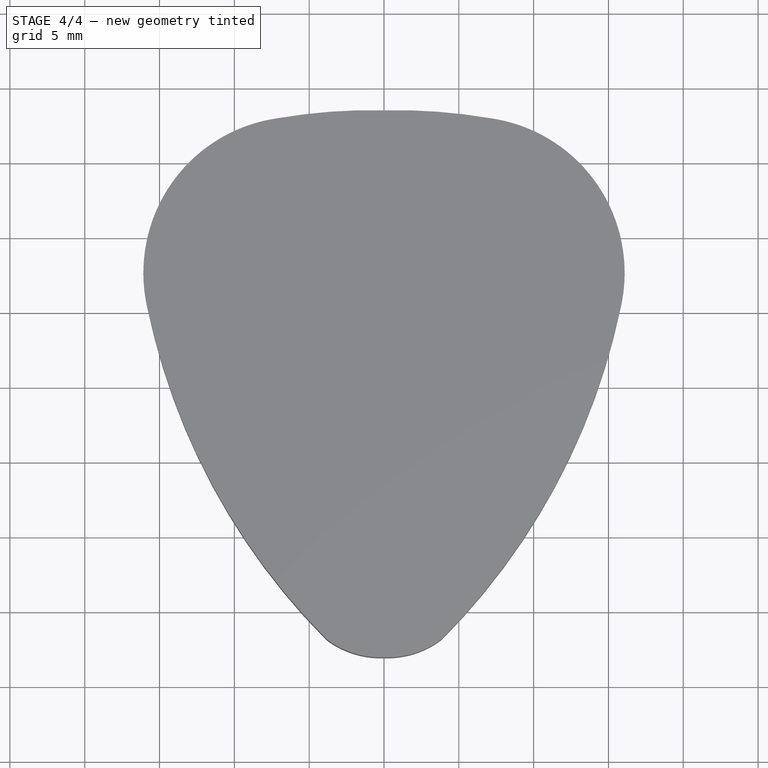
[diagram: stage 4 of 4 — top view after this stage's code; geometry added in this stage tinted green]
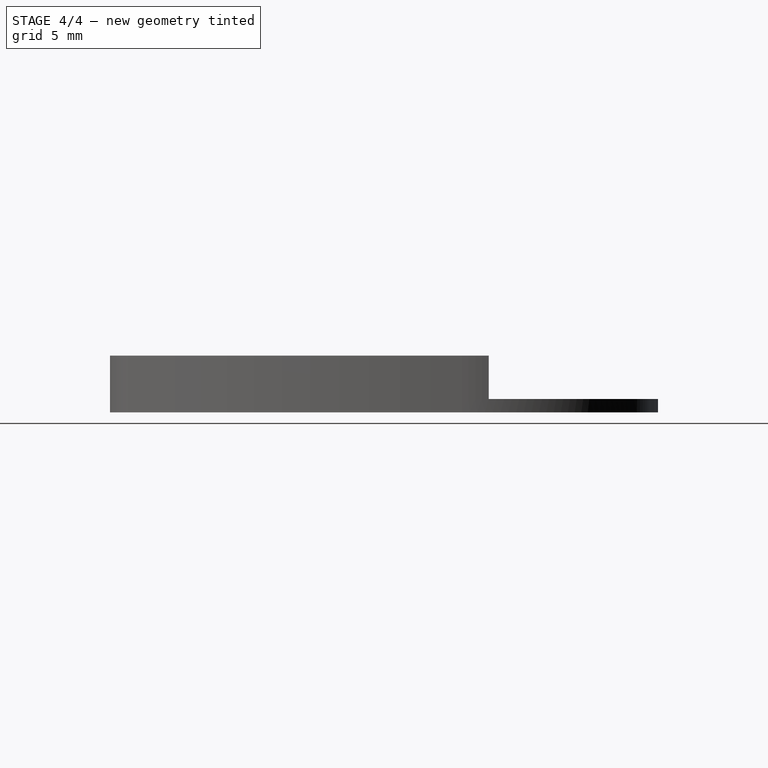
[diagram: stage 4 of 4 — right view after this stage's code; geometry added in this stage tinted green]
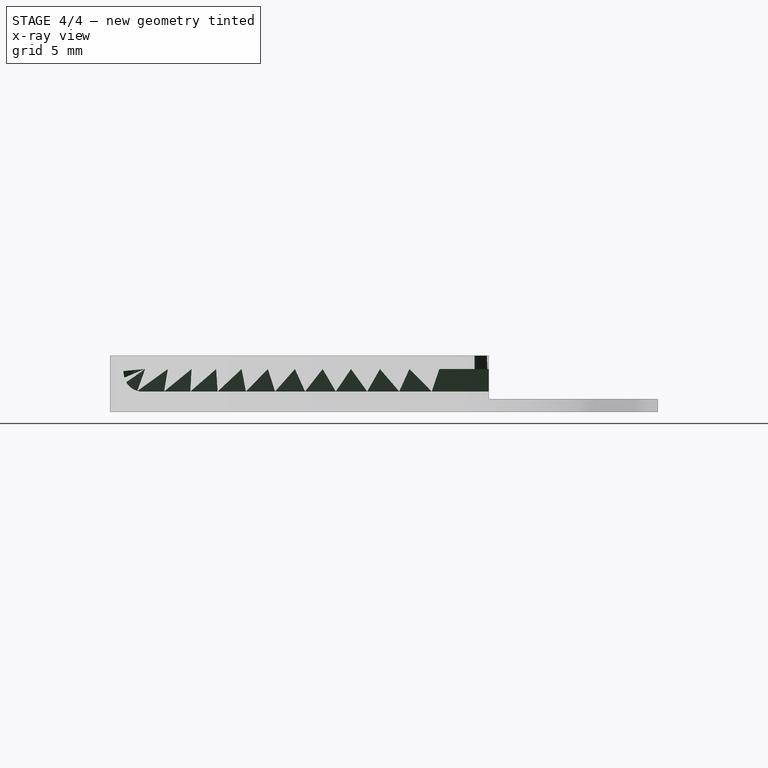
[diagram: stage 4 of 4 — x-ray composite at the right view; earlier geometry ghosted, this stage's added geometry solid]
FEATURE [PartDesign::Chamfer] Chamfer
  Base = -> Pad002 [Edge42,Edge52]
  BaseFeature = -> Pad002
  Size = 1.5
  expr: Size = Spreadsheet.OverhangChamfer
FEATURE [PartDesign::Fillet] Fillet
  Base = -> Chamfer [Edge23,Edge75]
  BaseFeature = -> Chamfer
  Radius = 2
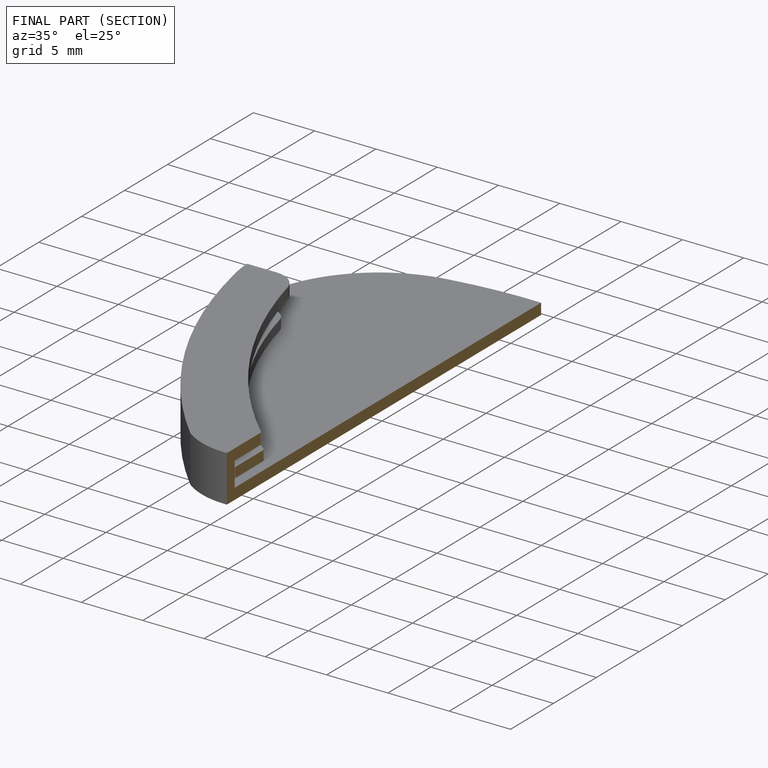
[diagram: finished part — half-section view (interior)]
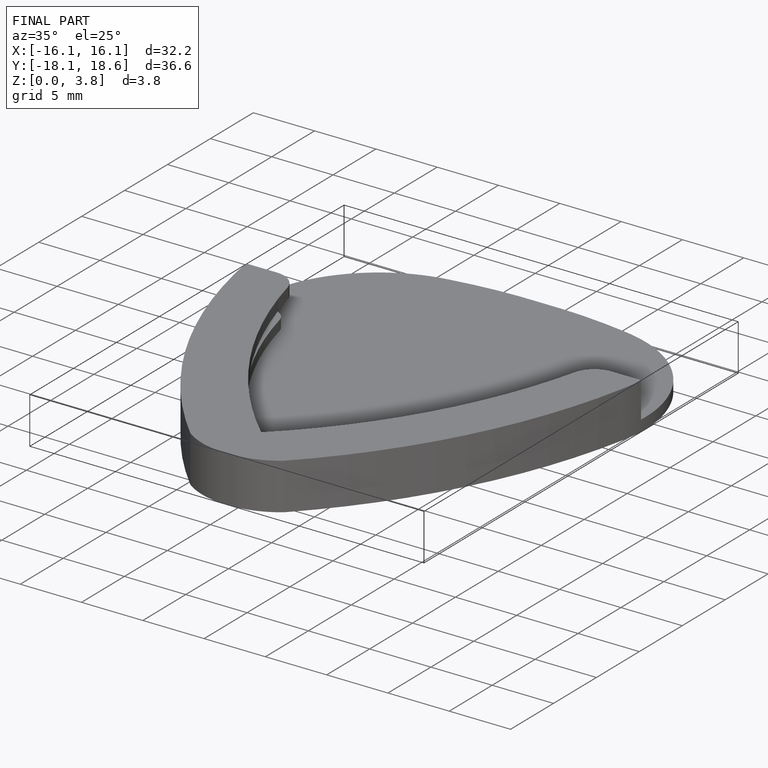
[diagram: finished part — iso view with bounding-box wireframe]
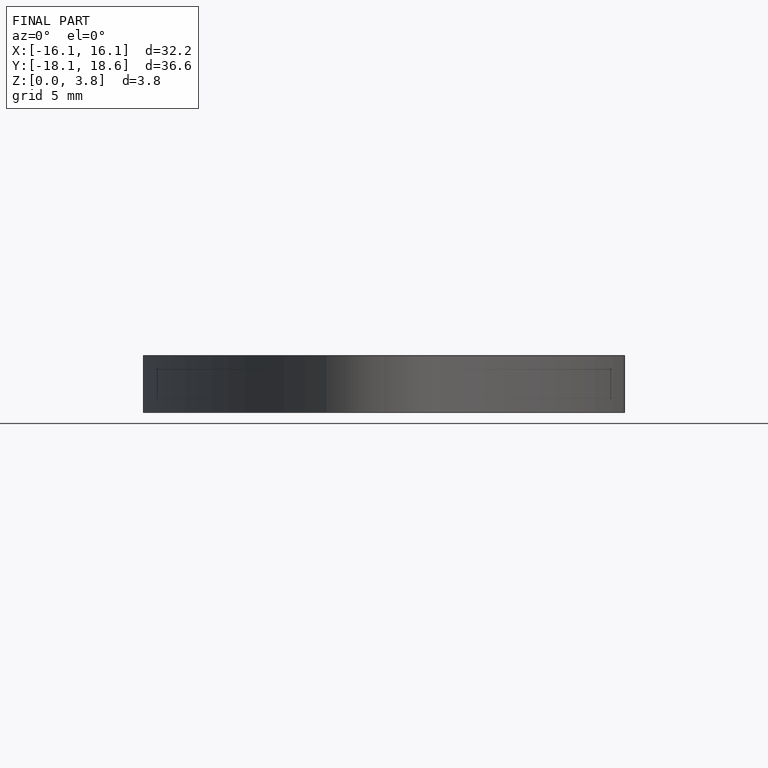
[diagram: finished part — front view with bounding-box wireframe]
